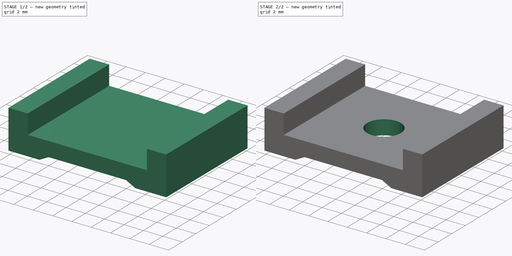
[diagram: build sequence overview — one tinted view per stage of 2, left to right]
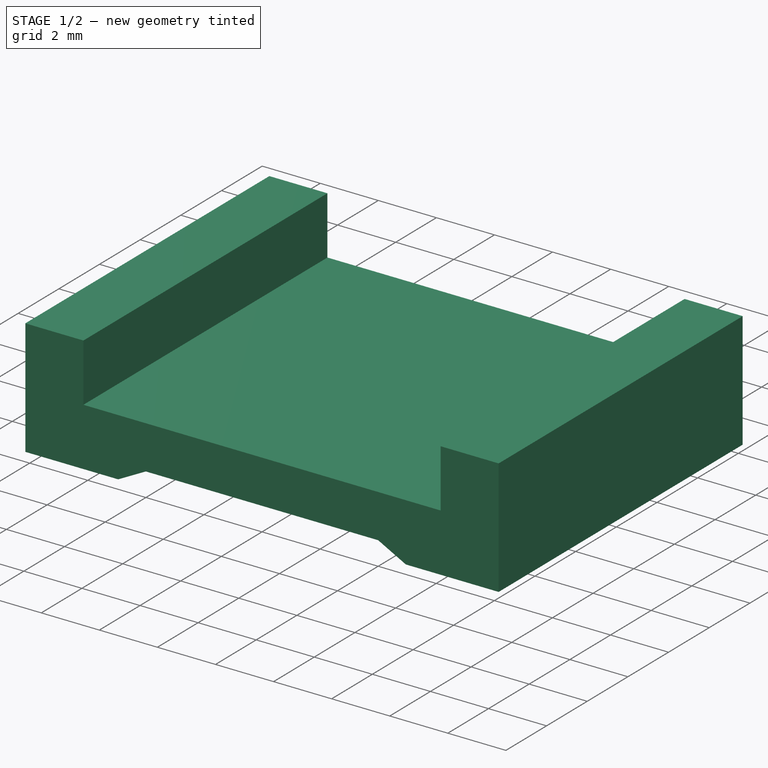
[diagram: stage 1 of 2 — iso view after this stage's code; geometry added in this stage tinted green]
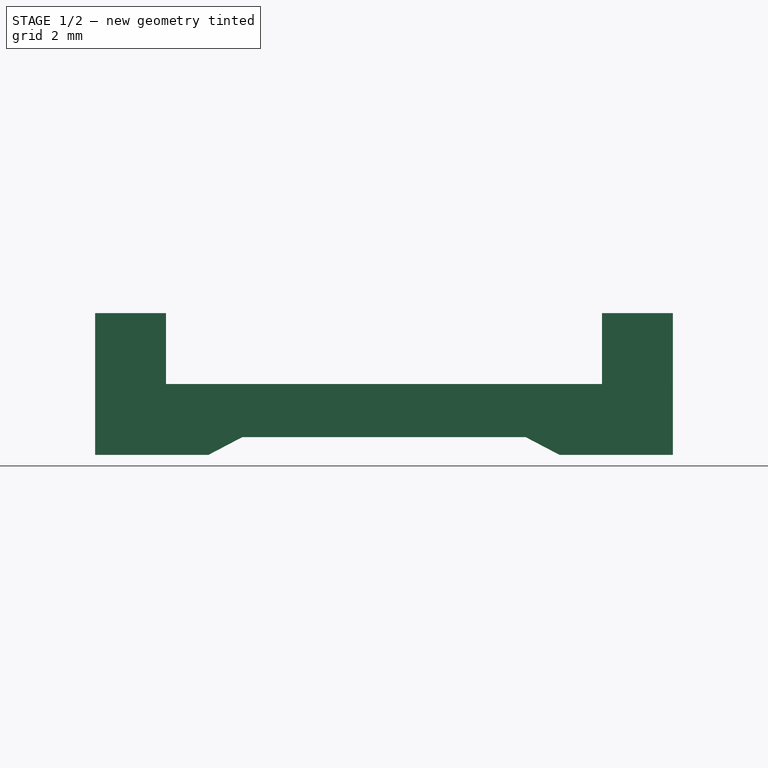
[diagram: stage 1 of 2 — front view after this stage's code; geometry added in this stage tinted green]
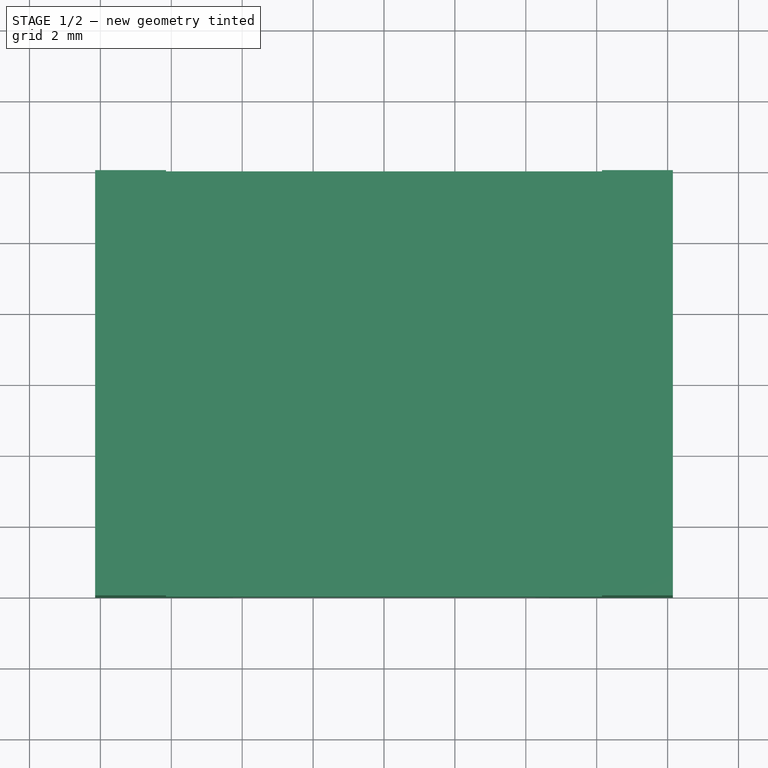
[diagram: stage 1 of 2 — top view after this stage's code; geometry added in this stage tinted green]
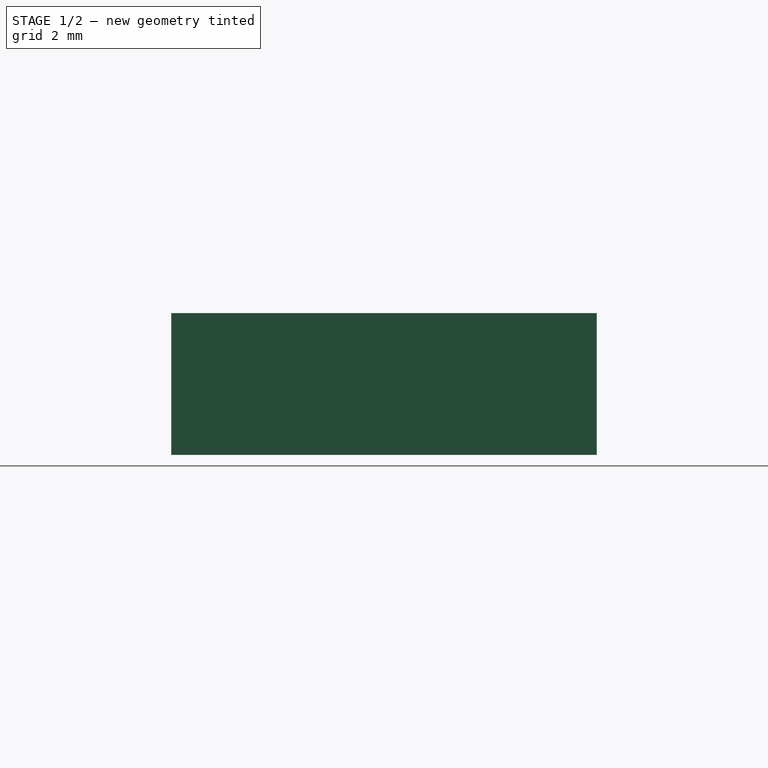
[diagram: stage 1 of 2 — right view after this stage's code; geometry added in this stage tinted green]
FCSTD DOCUMENT  (FreeCAD 0.19R)
Label: Zrail_pads
License: All rights reserved
LicenseURL: http://en.wikipedia.org/wiki/All_rights_reserved
objects: Sketcher::SketchObject×2, PartDesign::Pad×1, PartDesign::Pocket×1, PartDesign::Body×1
note: 7 computed .brp shape members not serialized (recipe doc carries the construction recipe); baked Part::Feature solids carry a one-line shape summary decoded from their .brp

FEATURE [Sketcher::SketchObject] Sketch
  FullyConstrained = false
  MapMode = 5
  Placement = pos=(0,0,0) rot=(1,0,0;1.5708rad)
  Support = -> [XZ_Plane]
  sketch-geometry (12):
    g0: LineSegment StartX=-6.15 StartY=0 StartZ=0 EndX=6.15 EndY=0 EndZ=0
    g1: LineSegment StartX=6.15 StartY=0 StartZ=0 EndX=6.15 EndY=2 EndZ=0
    g2: LineSegment StartX=6.15 StartY=2 StartZ=0 EndX=8.15 EndY=2 EndZ=0
    g3: LineSegment StartX=8.15 StartY=2 StartZ=0 EndX=8.15 EndY=-2 EndZ=0
    g4: LineSegment StartX=8.15 StartY=-2 StartZ=0 EndX=4.95394 EndY=-2 EndZ=0
    g5: LineSegment StartX=4.95394 StartY=-2 StartZ=0 EndX=4 EndY=-1.5 EndZ=0
    g6: LineSegment StartX=4 StartY=-1.5 StartZ=0 EndX=-4 EndY=-1.5 EndZ=0
    g7: LineSegment StartX=-4 StartY=-1.5 StartZ=0 EndX=-4.95394 EndY=-2 EndZ=0
    g8: LineSegment StartX=-4.95394 StartY=-2 StartZ=0 EndX=-8.15 EndY=-2 EndZ=0
    g9: LineSegment StartX=-8.15 StartY=-2 StartZ=0 EndX=-8.15 EndY=2 EndZ=0
    g10: LineSegment StartX=-8.15 StartY=2 StartZ=0 EndX=-6.15 EndY=2 EndZ=0
    g11: LineSegment StartX=-6.15 StartY=2 StartZ=0 EndX=-6.15 EndY=0 EndZ=0
  constraints (29):
    c: PointOnObject(g0,g-1)
    c: Coincident(g0,g1)
    c: Vertical(g1)
    c: Coincident(g1,g2)
    c: Coincident(g2,g3)
    c: Vertical(g3)
    c: Coincident(g3,g4)
    c: Horizontal(g4)
    c: Coincident(g4,g5)
    c: Coincident(g5,g6)
    c: Coincident(g6,g7)
    c: Coincident(g7,g8)
    c: Coincident(g8,g9)
    c: Coincident(g9,g10)
    c: Horizontal(g10)
    c: Coincident(g10,g11)
    c: Coincident(g0,g11)
    c: Symmetric(g0,g0,g-2)
    c: Distance(g0) = 12.3
    c: Distance(g1) = 2
    c: Symmetric(g1,g10,g-2)
    c: Symmetric(g2,g9,g-2)
    c: Distance(g2) = 2
    c: Distance(g5,g0) = 1.5
    c: Symmetric(g5,g6,g-2)
    c: Distance(g6) = 8
    c: Symmetric(g7,g4,g-2)
    c: Symmetric(g8,g3,g-2)
    c: DistanceY(g4) = -2
FEATURE [PartDesign::Pad] Pad
  Direction = (1,1,1)
  Length = 12
  Length2 = 100
  Placement = pos=(0,0,0) rot=(1,0,0;1.5708rad)
  Profile = -> Sketch
  Type = 0
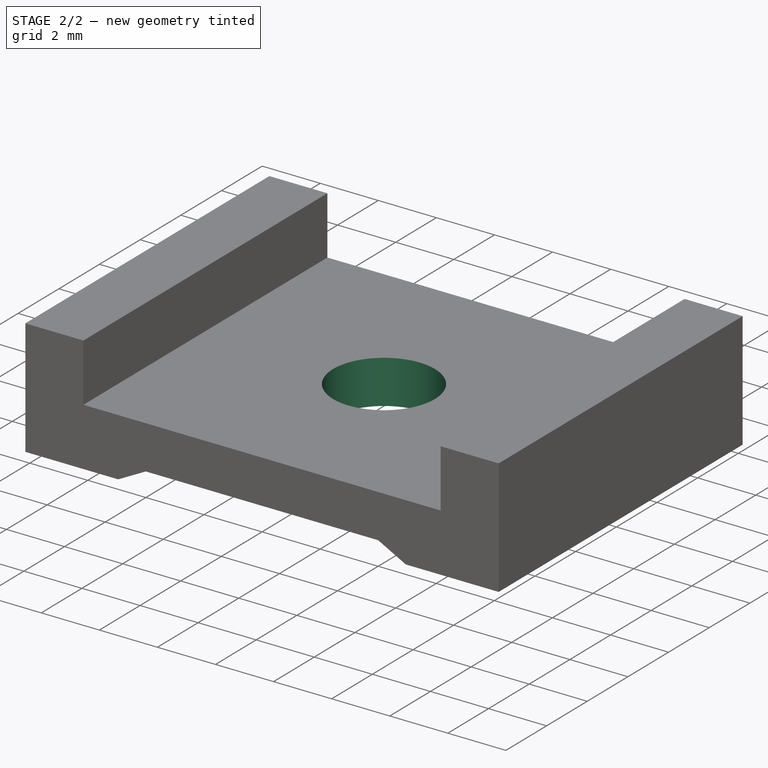
[diagram: stage 2 of 2 — iso view after this stage's code; geometry added in this stage tinted green]
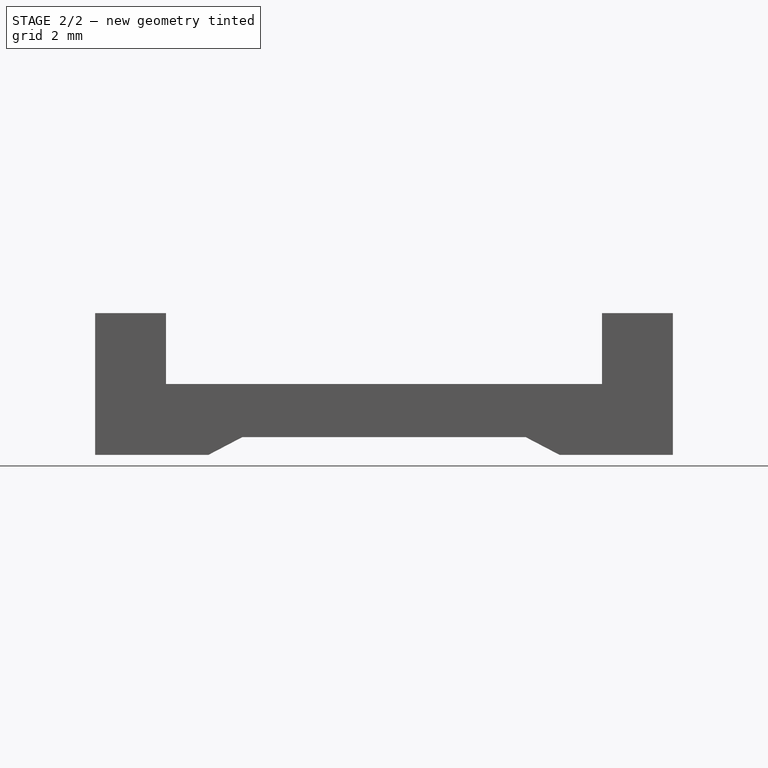
[diagram: stage 2 of 2 — front view after this stage's code; geometry added in this stage tinted green]
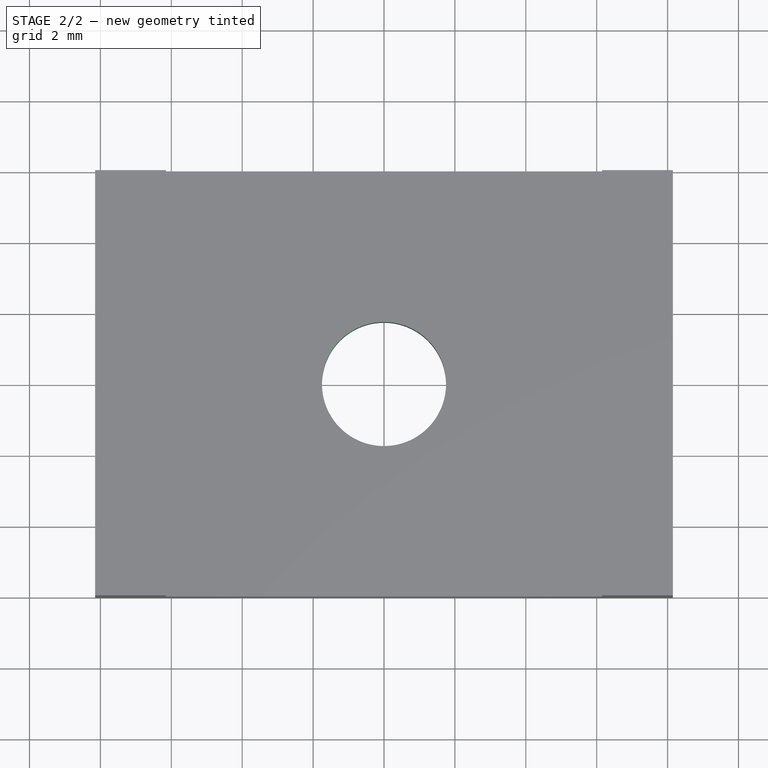
[diagram: stage 2 of 2 — top view after this stage's code; geometry added in this stage tinted green]
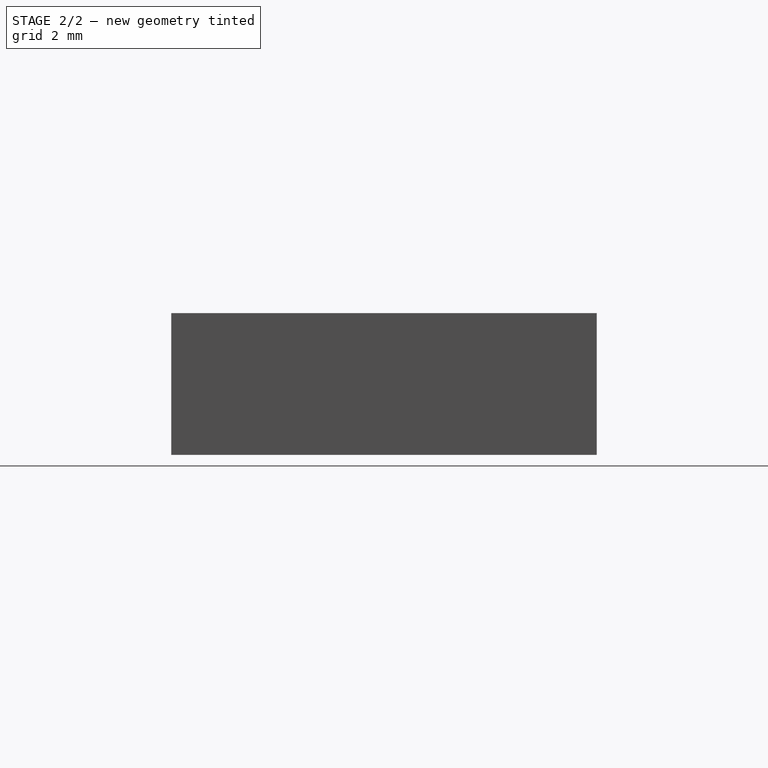
[diagram: stage 2 of 2 — right view after this stage's code; geometry added in this stage tinted green]
FEATURE [Sketcher::SketchObject] Sketch001
  FullyConstrained = true
  MapMode = 5
  Placement = pos=(0,0,0) rot=(0,0,1;3.14159rad)
  Support = -> [Pad]
  sketch-geometry (1):
    g0: Circle CenterX=0 CenterY=6 CenterZ=0 NormalX=0 NormalY=0 NormalZ=1 AngleXU=0 Radius=1.75
  constraints (3):
    c: DistanceY(g0) = 6
    c: Diameter(g0) = 3.5
    c: PointOnObject(g0,g-2)
FEATURE [PartDesign::Pocket] Pocket
  BaseFeature = -> Pad
  Length = 5
  Length2 = 100
  Placement = pos=(0,0,0) rot=(1,0,0;1.5708rad)
  Profile = -> Sketch001
  Type = 0
FEATURE [PartDesign::Body] Body
  Group = -> [Sketch,Pad,Sketch001,Pocket]
  Origin = -> Origin
  Tip = -> Pocket
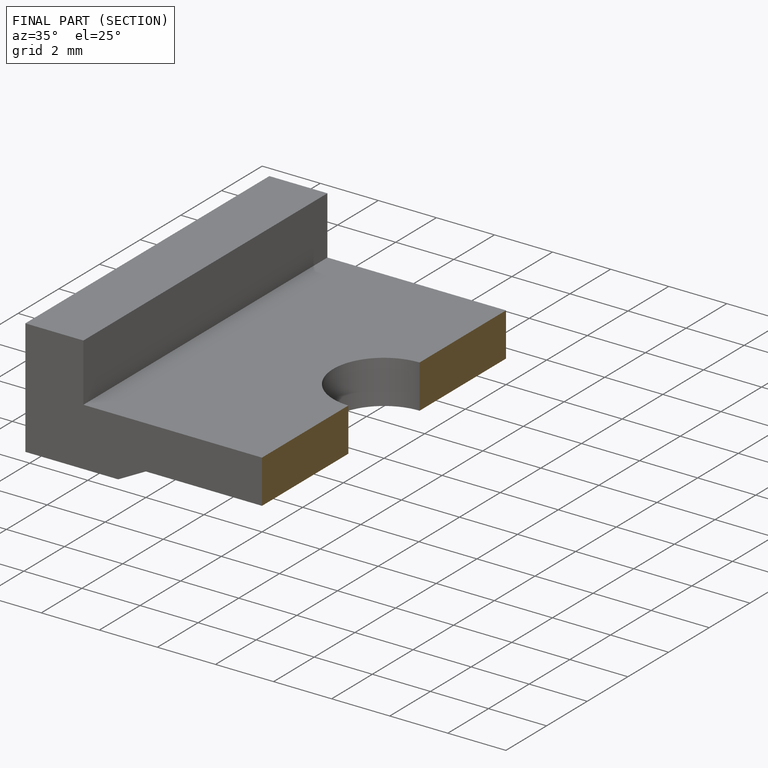
[diagram: finished part — half-section view (interior)]
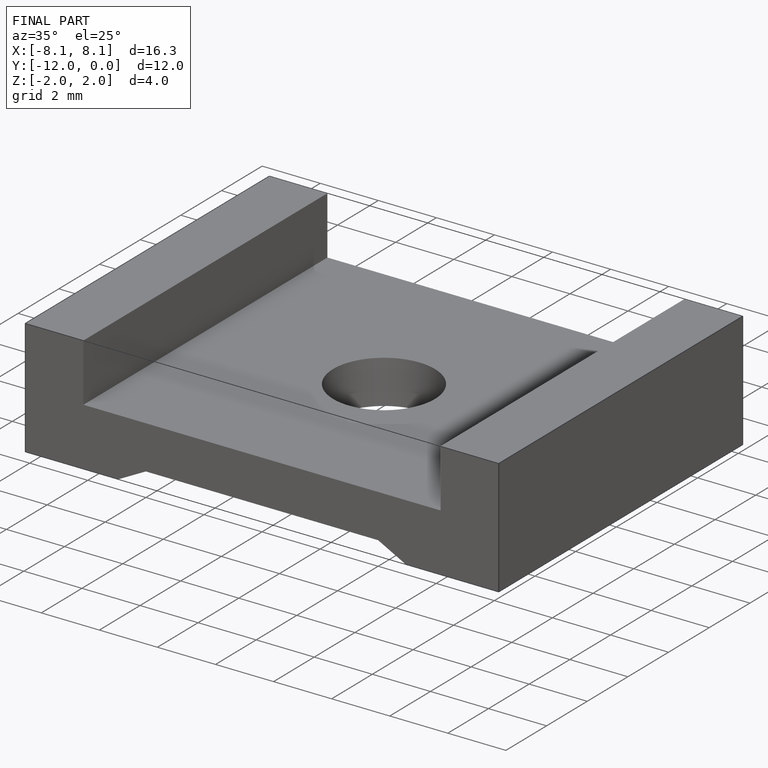
[diagram: finished part — iso view with bounding-box wireframe]
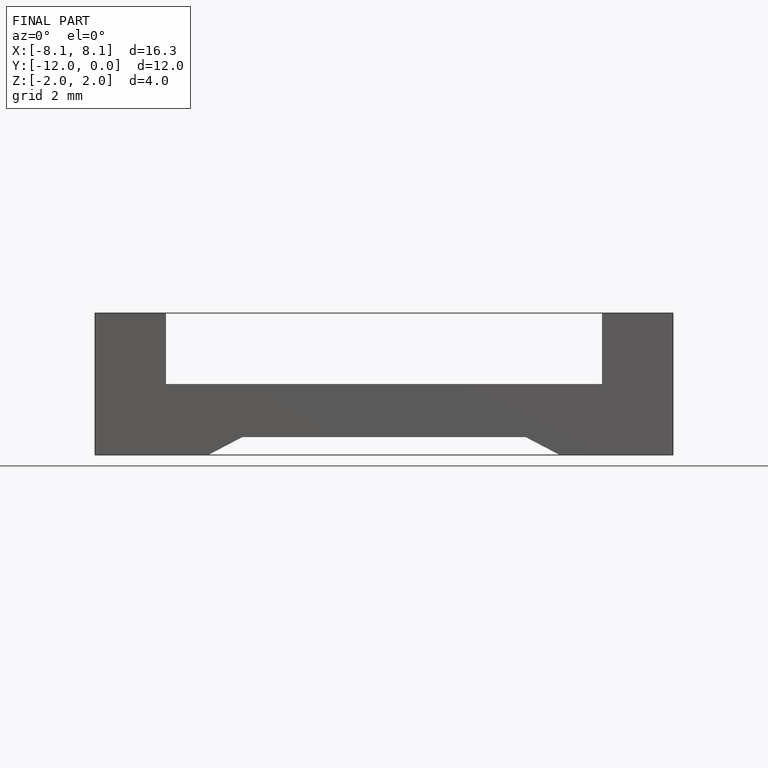
[diagram: finished part — front view with bounding-box wireframe]
